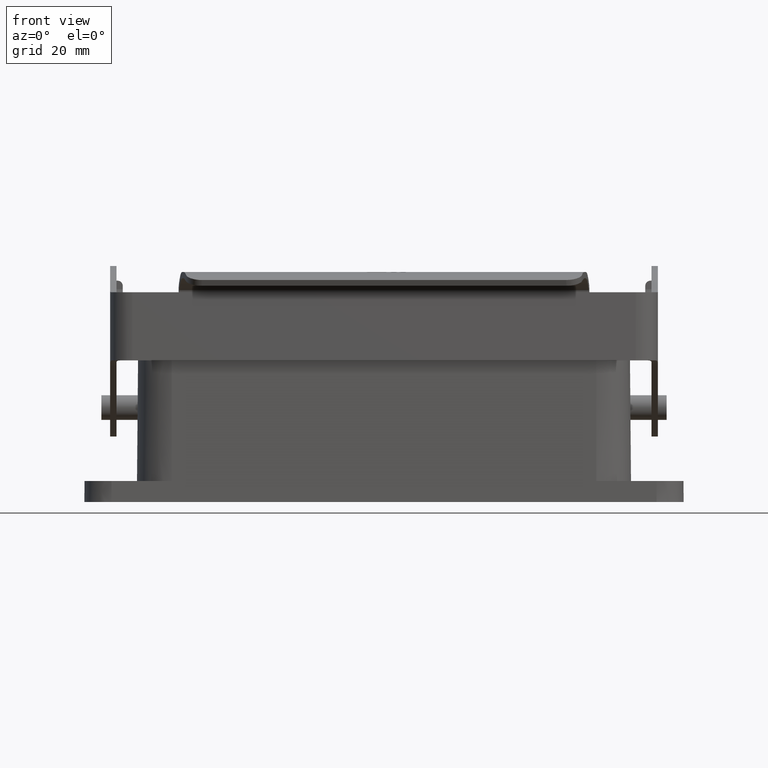
[diagram: clean part render]
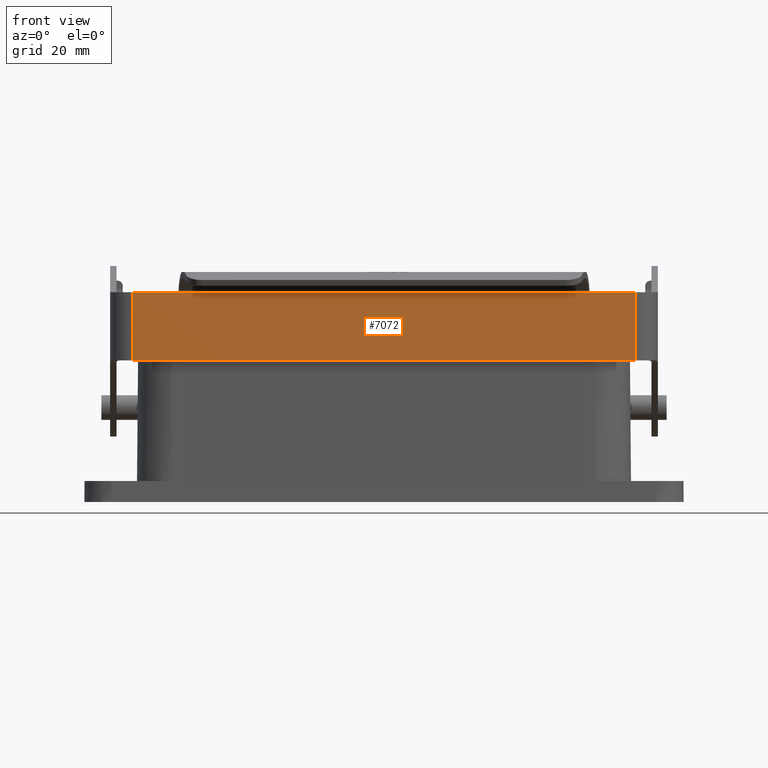
[diagram: same view with one face highlighted and labeled with its STEP entity id]
A machine part, front view. The second image highlights one B-rep face of the part: STEP entity #7072.
In plain terms, the highlighted planar face has unit normal (0, -1, 0).
Its self-contained STEP definition (entity closure, byte-faithful):
#2 = VECTOR ( 'NONE', #227, 39.37007874015748143 ) ;
#11 = FACE_OUTER_BOUND ( 'NONE', #3421, .T. ) ;
#52 = ORIENTED_EDGE ( 'NONE', *, *, #563, .F. ) ;
#200 = CARTESIAN_POINT ( 'NONE',  ( -0.5295275590745827099, -1.039371234514252063, -0.2244103477995992302 ) ) ;
#227 = DIRECTION ( 'NONE',  ( 1.000000000000000000, 0.000000000000000000, -0.000000000000000000 ) ) ;
#236 = VERTEX_POINT ( 'NONE', #600 ) ;
#304 = CARTESIAN_POINT ( 'NONE',  ( 1.360236220452976541, -1.039371234514252063, 0.2874006758224441072 ) ) ;
#354 = EDGE_CURVE ( 'NONE', #5545, #2419, #1513, .T. ) ;
#358 = CARTESIAN_POINT ( 'NONE',  ( -2.419291338602141739, -1.039371234514252063, -0.2244103477995992302 ) ) ;
#512 = DIRECTION ( 'NONE',  ( 0.000000000000000000, 0.000000000000000000, 1.000000000000000000 ) ) ;
#563 = EDGE_CURVE ( 'NONE', #5545, #236, #5971, .T. ) ;
#600 = CARTESIAN_POINT ( 'NONE',  ( -2.419291338602141739, -1.039371234514252063, 0.2874006758224441072 ) ) ;
#1433 = EDGE_CURVE ( 'NONE', #1579, #2419, #2362, .T. ) ;
#1513 = LINE ( 'NONE', #200, #6940 ) ;
#1562 = CARTESIAN_POINT ( 'NONE',  ( 1.008027300569823259, -1.039371234514252063, 0.2874006758224441072 ) ) ;
#1579 = VERTEX_POINT ( 'NONE', #304 ) ;
#1619 = CARTESIAN_POINT ( 'NONE',  ( -2.584645669310802862, -1.039371234514252063, 0.2874006758224441072 ) ) ;
#1971 = CARTESIAN_POINT ( 'NONE',  ( 1.360236220452976541, -1.039371234514252063, -0.2244103477995992302 ) ) ;
#2352 = CARTESIAN_POINT ( 'NONE',  ( -2.584645669310802862, -1.039371234514252063, 0.2874006758224441072 ) ) ;
#2362 = LINE ( 'NONE', #6106, #6720 ) ;
#2419 = VERTEX_POINT ( 'NONE', #1971 ) ;
#2592 = DIRECTION ( 'NONE',  ( 1.000000000000000000, 0.000000000000000000, -0.000000000000000000 ) ) ;
#2667 = DIRECTION ( 'NONE',  ( -1.000000000000000000, -0.000000000000000000, -0.000000000000000000 ) ) ;
#2948 = VERTEX_POINT ( 'NONE', #1562 ) ;
#3193 = DIRECTION ( 'NONE',  ( -1.000000000000000000, -0.000000000000000000, -0.000000000000000000 ) ) ;
#3401 = CARTESIAN_POINT ( 'NONE',  ( -2.067082418718988901, -1.039371234514252063, 0.2874006758224441072 ) ) ;
#3421 = EDGE_LOOP ( 'NONE', ( #5988, #6886, #7097, #52, #6862, #5996 ) ) ;
#3536 = LINE ( 'NONE', #2352, #2 ) ;
#3898 = CARTESIAN_POINT ( 'NONE',  ( -2.419291338602141739, -1.039371234514252063, 0.2874006758224441072 ) ) ;
#4403 = DIRECTION ( 'NONE',  ( 0.000000000000000000, -1.000000000000000000, 0.000000000000000000 ) ) ;
#4862 = PLANE ( 'NONE',  #6084 ) ;
#5063 = VERTEX_POINT ( 'NONE', #3401 ) ;
#5545 = VERTEX_POINT ( 'NONE', #358 ) ;
#5785 = EDGE_CURVE ( 'NONE', #2948, #5063, #6467, .T. ) ;
#5971 = LINE ( 'NONE', #3898, #7047 ) ;
#5988 = ORIENTED_EDGE ( 'NONE', *, *, #6557, .F. ) ;
#5996 = ORIENTED_EDGE ( 'NONE', *, *, #1433, .F. ) ;
#6084 = AXIS2_PLACEMENT_3D ( 'NONE', #7060, #4403, #6193 ) ;
#6106 = CARTESIAN_POINT ( 'NONE',  ( 1.360236220452976541, -1.039371234514252063, 0.2874006758224441072 ) ) ;
#6193 = DIRECTION ( 'NONE',  ( 0.000000000000000000, -0.000000000000000000, -1.000000000000000000 ) ) ;
#6407 = VECTOR ( 'NONE', #3193, 39.37007874015748143 ) ;
#6467 = LINE ( 'NONE', #1619, #6407 ) ;
#6557 = EDGE_CURVE ( 'NONE', #2948, #1579, #3536, .T. ) ;
#6720 = VECTOR ( 'NONE', #6750, 39.37007874015748143 ) ;
#6750 = DIRECTION ( 'NONE',  ( -0.000000000000000000, -0.000000000000000000, -1.000000000000000000 ) ) ;
#6764 = EDGE_CURVE ( 'NONE', #5063, #236, #6913, .T. ) ;
#6862 = ORIENTED_EDGE ( 'NONE', *, *, #354, .T. ) ;
#6886 = ORIENTED_EDGE ( 'NONE', *, *, #5785, .T. ) ;
#6913 = LINE ( 'NONE', #7020, #7009 ) ;
#6940 = VECTOR ( 'NONE', #2592, 39.37007874015748143 ) ;
#7009 = VECTOR ( 'NONE', #2667, 39.37007874015748143 ) ;
#7020 = CARTESIAN_POINT ( 'NONE',  ( -2.584645669310802862, -1.039371234514252063, 0.2874006758224441072 ) ) ;
#7047 = VECTOR ( 'NONE', #512, 39.37007874015748143 ) ;
#7060 = CARTESIAN_POINT ( 'NONE',  ( -2.584645669310802862, -1.039371234514252063, 0.2874006758224441072 ) ) ;
#7072 = ADVANCED_FACE ( 'NONE', ( #11 ), #4862, .T. ) ;
#7097 = ORIENTED_EDGE ( 'NONE', *, *, #6764, .T. ) ;